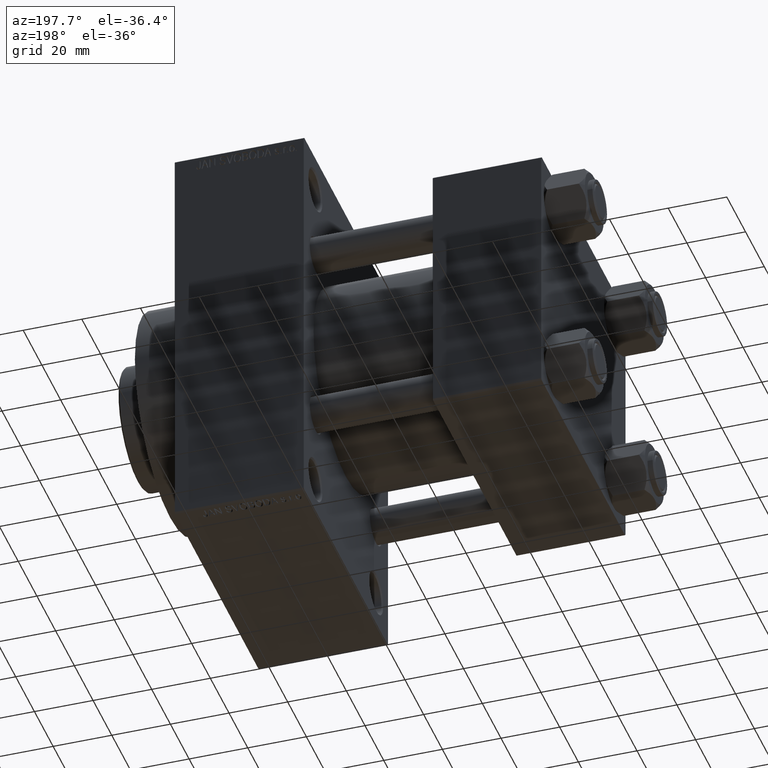
[diagram: clean part render]
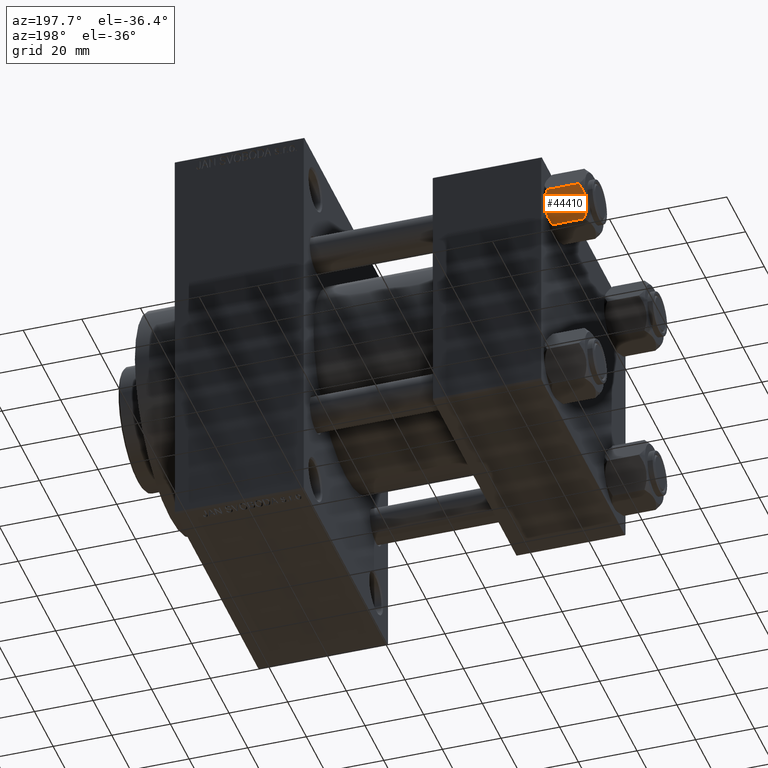
[diagram: same view with one face highlighted and labeled with its STEP entity id]
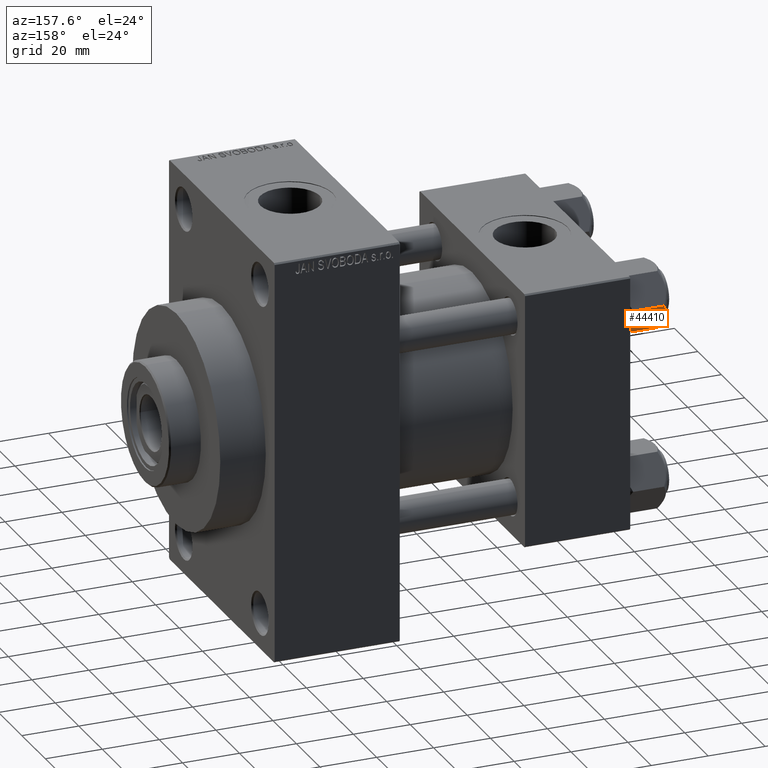
[diagram: same view with one face highlighted and labeled with its STEP entity id]
A machine part, auxiliary view. The second image highlights one B-rep face of the part: STEP entity #44410.
A second angle (auxiliary view) of the same face is appended — the face is thin or edge-on in the first view.
In plain terms, the highlighted planar face has unit normal (-0, -0.866, 0.5).
Its self-contained STEP definition (entity closure, byte-faithful):
#3125 = ORIENTED_EDGE ( 'NONE', *, *, #39492, .F. ) ;
#3586 = CARTESIAN_POINT ( 'NONE',  ( 11.62000000000000099, -1.689012838886770227E-15, -12.44321519197518633 ) ) ;
#4354 = CARTESIAN_POINT ( 'NONE',  ( 9.716999946243698005, 3.296092779912226156, -13.84547602999602134 ) ) ;
#4572 = EDGE_CURVE ( 'NONE', #31548, #45867, #36152, .T. ) ;
#4600 = CARTESIAN_POINT ( 'NONE',  ( 8.715000000000005187, 5.031607595987590109, -14.00000000000000000 ) ) ;
#4836 = CARTESIAN_POINT ( 'NONE',  ( 8.715000000000005187, 5.031607595987590109, 0.000000000000000000 ) ) ;
#5338 = FACE_OUTER_BOUND ( 'NONE', #24334, .T. ) ;
#7378 = B_SPLINE_CURVE_WITH_KNOTS ( 'NONE', 3,
 ( #27029, #23700, #19389, #16274, #12931, #26800, #37524, #4836 ),
 .UNSPECIFIED., .F., .F.,
 ( 4, 2, 2, 4 ),
 ( 2.544312114903581015E-07, 0.003011550106433540791, 0.004517197944044564449, 0.006022845781655588107 ),
 .UNSPECIFIED. ) ;
#7998 = CARTESIAN_POINT ( 'NONE',  ( 5.810000000000000497, 10.06321519197518022, -12.44321519197518455 ) ) ;
#8240 = CARTESIAN_POINT ( 'NONE',  ( 7.700834831386345058, 6.788193195293094284, -13.80960203119265906 ) ) ;
#8406 = CARTESIAN_POINT ( 'NONE',  ( 11.62000000000000099, -1.689012838886770227E-15, -12.44321519197518633 ) ) ;
#8527 = CARTESIAN_POINT ( 'NONE',  ( 11.62000000000000099, -1.813166800014576593E-15, -14.00000000000000000 ) ) ;
#8712 = CARTESIAN_POINT ( 'NONE',  ( 8.460569896449618099, 5.472293462311861312, -14.00000000000000000 ) ) ;
#8770 = CARTESIAN_POINT ( 'NONE',  ( 5.810000000000000497, 10.06321519197518022, -1.556784808024815892 ) ) ;
#9327 = EDGE_CURVE ( 'NONE', #39734, #9333, #26692, .T. ) ;
#9333 = VERTEX_POINT ( 'NONE', #43856 ) ;
#9843 = CARTESIAN_POINT ( 'NONE',  ( 5.810000000000000497, 10.06321519197518022, -1.556784808024815892 ) ) ;
#9850 = DIRECTION ( 'NONE',  ( 0.4999999999999998335, -0.8660254037844387076, 0.000000000000000000 ) ) ;
#11274 = CARTESIAN_POINT ( 'NONE',  ( 9.220295946303432189, 4.156409344131451356, -14.00000000000000178 ) ) ;
#11644 = ORIENTED_EDGE ( 'NONE', *, *, #19732, .T. ) ;
#11823 = CARTESIAN_POINT ( 'NONE',  ( 6.731401448974991375, 8.467301068182917945, -13.28585617404753627 ) ) ;
#12931 = CARTESIAN_POINT ( 'NONE',  ( 9.729165168613654657, 3.275021996682081493, -0.1903979688073405840 ) ) ;
#14861 = CARTESIAN_POINT ( 'NONE',  ( 8.715000000000005187, 5.031607595987590109, 0.000000000000000000 ) ) ;
#16120 = CARTESIAN_POINT ( 'NONE',  ( 8.715000000000005187, 5.031607595987590109, -14.00000000000000000 ) ) ;
#16274 = CARTESIAN_POINT ( 'NONE',  ( 9.974696630283190757, 2.849749030213792000, -0.3002673809867367205 ) ) ;
#16651 = CARTESIAN_POINT ( 'NONE',  ( 8.715000000000005187, 5.031607595987590109, 0.000000000000000000 ) ) ;
#16796 = VECTOR ( 'NONE', #37593, 1000.000000000000000 ) ;
#17218 = VERTEX_POINT ( 'NONE', #28080 ) ;
#17674 = EDGE_CURVE ( 'NONE', #9333, #31548, #7378, .T. ) ;
#17979 = VERTEX_POINT ( 'NONE', #39352 ) ;
#18701 = ORIENTED_EDGE ( 'NONE', *, *, #17674, .F. ) ;
#19389 = CARTESIAN_POINT ( 'NONE',  ( 10.69859855102501278, 1.595914123792262718, -0.7141438259524649501 ) ) ;
#19732 = EDGE_CURVE ( 'NONE', #17979, #45867, #41182, .T. ) ;
#19758 = CARTESIAN_POINT ( 'NONE',  ( 6.733375043383499126, 8.463882702393844326, -0.7114554706434494946 ) ) ;
#19772 = EDGE_CURVE ( 'NONE', #17979, #17218, #35175, .T. ) ;
#21880 = AXIS2_PLACEMENT_3D ( 'NONE', #41843, #42550, #9850 ) ;
#23103 = DIRECTION ( 'NONE',  ( -0.000000000000000000, -0.000000000000000000, 1.000000000000000000 ) ) ;
#23700 = CARTESIAN_POINT ( 'NONE',  ( 11.16445427487472131, 0.7890283410877956261, -1.101239082899531985 ) ) ;
#24334 = EDGE_LOOP ( 'NONE', ( #27831, #11644, #36068, #18701, #38882, #3125 ) ) ;
#26692 = LINE ( 'NONE', #8527, #30926 ) ;
#26800 = CARTESIAN_POINT ( 'NONE',  ( 9.227666995912102266, 4.143642311704121894, -0.03994118060690670519 ) ) ;
#27029 = CARTESIAN_POINT ( 'NONE',  ( 11.62000000000000099, -1.924525737834042474E-15, -1.556784808024813893 ) ) ;
#27831 = ORIENTED_EDGE ( 'NONE', *, *, #19772, .F. ) ;
#28080 = CARTESIAN_POINT ( 'NONE',  ( 8.715000000000005187, 5.031607595987590109, -14.00000000000000000 ) ) ;
#30673 = CARTESIAN_POINT ( 'NONE',  ( 5.810000000000000497, 10.06321519197518022, -14.00000000000000000 ) ) ;
#30926 = VECTOR ( 'NONE', #23103, 1000.000000000000000 ) ;
#31197 = CARTESIAN_POINT ( 'NONE',  ( 7.713000053756307928, 6.767122412062951398, -0.1545239700039825748 ) ) ;
#31548 = VERTEX_POINT ( 'NONE', #14861 ) ;
#34444 = PLANE ( 'NONE',  #21880 ) ;
#35175 = B_SPLINE_CURVE_WITH_KNOTS ( 'NONE', 3,
 ( #7998, #44999, #11823, #40943, #8240, #37363, #8712, #16120 ),
 .UNSPECIFIED., .F., .F.,
 ( 4, 2, 2, 4 ),
 ( 2.544312114902182352E-07, 0.003011550106433542526, 0.004517197944044567919, 0.006022845781655592444 ),
 .UNSPECIFIED. ) ;
#36068 = ORIENTED_EDGE ( 'NONE', *, *, #4572, .F. ) ;
#36152 = B_SPLINE_CURVE_WITH_KNOTS ( 'NONE', 3,
 ( #16651, #38595, #31197, #19758, #46235, #8770 ),
 .UNSPECIFIED., .F., .F.,
 ( 4, 2, 4 ),
 ( 0.006022845781655588107, 0.009013049135303636758, 0.01200325248895168367 ),
 .UNSPECIFIED. ) ;
#36803 = CARTESIAN_POINT ( 'NONE',  ( 11.16498164529022574, 0.7881149087337292469, -12.89823354668504862 ) ) ;
#37363 = CARTESIAN_POINT ( 'NONE',  ( 8.202333004087901003, 5.919572880271053883, -13.96005881939309567 ) ) ;
#37524 = CARTESIAN_POINT ( 'NONE',  ( 8.969430103550381617, 4.590921729663312689, 3.523657060577888622E-15 ) ) ;
#37593 = DIRECTION ( 'NONE',  ( -0.000000000000000000, -0.000000000000000000, 1.000000000000000000 ) ) ;
#38595 = CARTESIAN_POINT ( 'NONE',  ( 8.209704053696576409, 5.906805847843727086, 3.430483436379916373E-15 ) ) ;
#38740 = B_SPLINE_CURVE_WITH_KNOTS ( 'NONE', 3,
 ( #4600, #11274, #4354, #44209, #36803, #8406 ),
 .UNSPECIFIED., .F., .F.,
 ( 4, 2, 4 ),
 ( 0.006022845781655592444, 0.009013049135303636758, 0.01200325248895168194 ),
 .UNSPECIFIED. ) ;
#38882 = ORIENTED_EDGE ( 'NONE', *, *, #9327, .F. ) ;
#39352 = CARTESIAN_POINT ( 'NONE',  ( 5.810000000000000497, 10.06321519197518022, -12.44321519197518455 ) ) ;
#39492 = EDGE_CURVE ( 'NONE', #17218, #39734, #38740, .T. ) ;
#39734 = VERTEX_POINT ( 'NONE', #3586 ) ;
#40943 = CARTESIAN_POINT ( 'NONE',  ( 7.455303369716807182, 7.213466161761384221, -13.69973261901325934 ) ) ;
#41182 = LINE ( 'NONE', #30673, #16796 ) ;
#41843 = CARTESIAN_POINT ( 'NONE',  ( 5.810000000000000497, 10.06321519197518022, -14.00000000000000000 ) ) ;
#42550 = DIRECTION ( 'NONE',  ( -0.8660254037844387076, -0.4999999999999998335, 0.000000000000000000 ) ) ;
#43856 = CARTESIAN_POINT ( 'NONE',  ( 11.62000000000000099, -1.924525737834042474E-15, -1.556784808024813893 ) ) ;
#44209 = CARTESIAN_POINT ( 'NONE',  ( 10.69662495661650503, 1.599332489581333672, -13.28854452935655139 ) ) ;
#44410 = ADVANCED_FACE ( 'NONE', ( #5338 ), #34444, .F. ) ;
#44999 = CARTESIAN_POINT ( 'NONE',  ( 6.265545725125286403, 9.274186850887383926, -12.89876091710046957 ) ) ;
#45867 = VERTEX_POINT ( 'NONE', #9843 ) ;
#46235 = CARTESIAN_POINT ( 'NONE',  ( 6.265018354709773973, 9.275100283241448196, -1.101766453314953154 ) ) ;